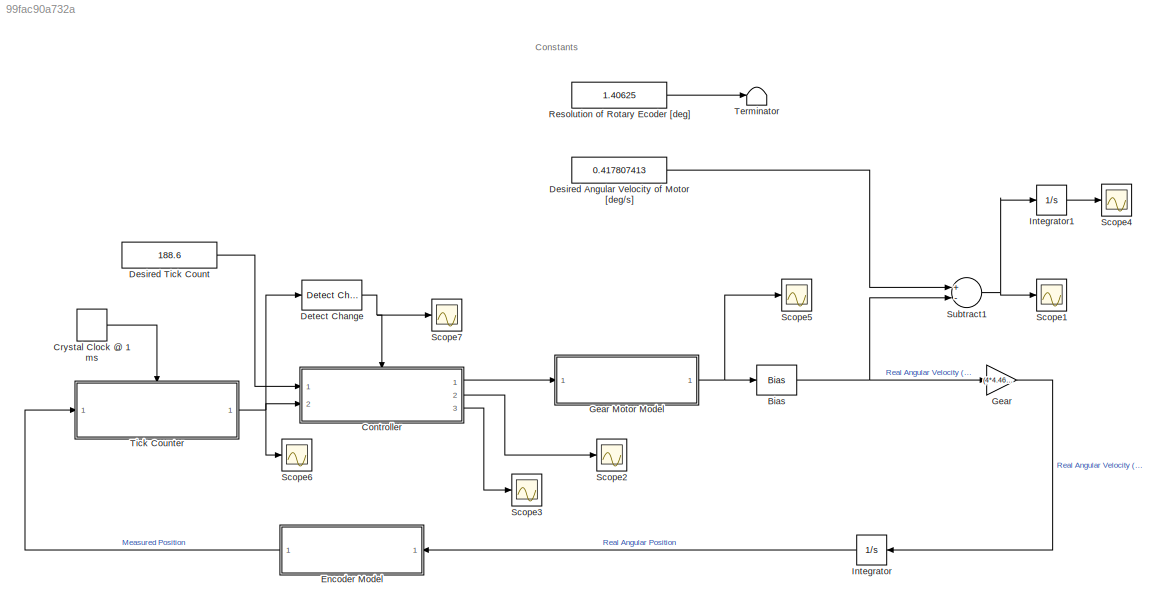
MODEL slx_99fac90a732a
KIND model
CONFIG AbsTol = auto
CONFIG FixedStep = 0.01
CONFIG MaxStep = auto
CONFIG MinStep = auto
CONFIG RelTol = 1e-3
CONFIG SampleTimeConstraint = Unconstrained
CONFIG Solver = ode45
CONFIG SolverMode = Auto
CONFIG SolverName = ode45
CONFIG StartTime = 0
CONFIG StopTime = 10
BLOCK [Bias] Bias
  SaturateOnIntegerOverflow = off
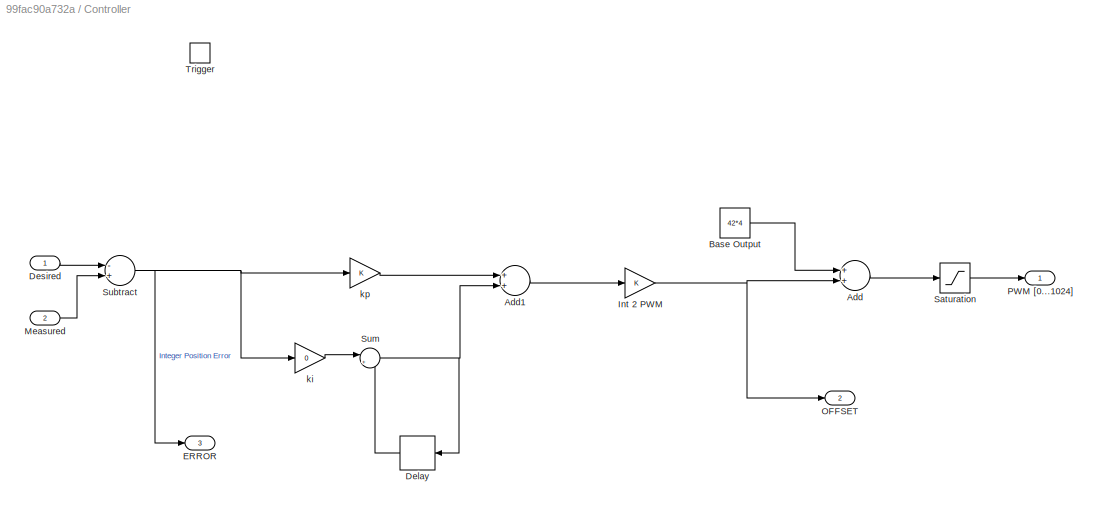
BLOCK [SubSystem] Controller
  Ports = [2, 3, 0, 1]
  RequestExecContextInheritance = off
  TreatAsAtomicUnit = on
BLOCK [Sum] Controller/Add
  InputSameDT = off
  OutDataTypeStr = Inherit: Inherit via internal rule
  Ports = [2, 1]
  SaturateOnIntegerOverflow = off
BLOCK [Sum] Controller/Add1
  InputSameDT = off
  OutDataTypeStr = Inherit: Inherit via internal rule
  Ports = [2, 1]
  SaturateOnIntegerOverflow = off
BLOCK [Constant] Controller/Base Output
  Value = 42*4
BLOCK [Delay] Controller/Delay
  DelayLength = 1
  InputPortMap = u0
  Ports = [1, 1]
BLOCK [Inport] Controller/Desired
  IconDisplay = Port number
BLOCK [Outport] Controller/ERROR
  IconDisplay = Port number
  InitialOutput = [0]
  Port = 3
BLOCK [Gain] Controller/Int 2 PWM
  OutDataTypeStr = Inherit: Inherit via internal rule
  ParamDataTypeStr = Inherit: Inherit via internal rule
  SaturateOnIntegerOverflow = off
BLOCK [Inport] Controller/Measured
  IconDisplay = Port number
  Port = 2
BLOCK [Outport] Controller/OFFSET
  IconDisplay = Port number
  InitialOutput = [0]
  Port = 2
BLOCK [Outport] Controller/PWM [0...1024]
  IconDisplay = Port number
  InitialOutput = [0]
BLOCK [Saturate] Controller/Saturation
  InputPortMap = u0
  LowerLimit = 0
  Ports = [1, 1]
  UpperLimit = 1024
BLOCK [Sum] Controller/Subtract
  InputSameDT = off
  Inputs = -+
  OutDataTypeStr = Inherit: Inherit via internal rule
  Ports = [2, 1]
  SaturateOnIntegerOverflow = off
BLOCK [Sum] Controller/Sum
  IconShape = round
  InputSameDT = off
  Inputs = |++
  OutDataTypeStr = Inherit: Inherit via internal rule
  Ports = [2, 1]
  SaturateOnIntegerOverflow = off
BLOCK [TriggerPort] Controller/Trigger
  Ports = []
  StatesWhenEnabling = held
BLOCK [Gain] Controller/ki
  Gain = 0
  OutDataTypeStr = Inherit: Inherit via internal rule
  ParamDataTypeStr = Inherit: Inherit via internal rule
  SaturateOnIntegerOverflow = off
BLOCK [Gain] Controller/kp
  OutDataTypeStr = Inherit: Inherit via internal rule
  ParamDataTypeStr = Inherit: Inherit via internal rule
  SaturateOnIntegerOverflow = off
BLOCK [DiscretePulseGenerator] Crystal Clock @ 1 ms
  Period = 0.001
  Ports = [0, 1]
  PulseType = Time based
  PulseWidth = 5
BLOCK [Constant] Desired Angular Velocity of Motor [deg//s]
  Value = 0.417807413
BLOCK [Constant] Desired Tick Count
  Value = 188.6
BLOCK [Reference] Detect Change  REF=simulink/Logic and Bit
Operations/Detect
Change
  InputProcessing = Inherited
  OutDataTypeStr = boolean
  Ports = [1, 1]
  SourceBlock = simulink/Logic and Bit\nOperations/Detect\nChange
  SourceType = Detect Change
  vinit = 0
BLOCK [ModelReference] Encoder Model
  CopyOfModelName = encoder.slx
  DefaultDataLogging = on
  ModelNameDialog = encoder.slx
  ModelReferenceVersion = 1.5
  Ports = [1, 1]
BLOCK [Gain] Gear
  Gain = (4*4.4615384615)
  OutDataTypeStr = Inherit: Inherit via internal rule
  ParamDataTypeStr = Inherit: Inherit via internal rule
  SaturateOnIntegerOverflow = off
BLOCK [ModelReference] Gear Motor Model
  CopyOfModelName = gear_motor.slx
  DefaultDataLogging = on
  ModelNameDialog = gear_motor.slx
  ModelReferenceVersion = 1.21
  Ports = [1, 1]
BLOCK [Integrator] Integrator
  Ports = [1, 1]
BLOCK [Integrator] Integrator1
  Ports = [1, 1]
BLOCK [Constant] Resolution of Rotary Ecoder [deg]
  Value = 1.40625
BLOCK [Scope] Scope1
  Floating = off
  LimitDataPoints = off
  NumInputPorts = 1
  Ports = [1]
  SaveName = ScopeData1
  TimeRange = 300
BLOCK [Scope] Scope2
  Floating = off
  LimitDataPoints = off
  NumInputPorts = 1
  Ports = [1]
  SaveName = ScopeData2
  TimeRange = 100
BLOCK [Scope] Scope3
  Floating = off
  LimitDataPoints = off
  NumInputPorts = 1
  Ports = [1]
  SaveName = ScopeData6
BLOCK [Scope] Scope4
  Floating = off
  LimitDataPoints = off
  NumInputPorts = 1
  Ports = [1]
  TimeRange = 300
  ZoomMode = xonly
BLOCK [Scope] Scope5
  Floating = off
  LimitDataPoints = off
  NumInputPorts = 1
  Ports = [1]
  SaveName = ScopeData3
  TimeRange = 300
BLOCK [Scope] Scope6
  Floating = off
  LimitDataPoints = off
  NumInputPorts = 1
  Ports = [1]
  SaveName = ScopeData4
  YMax = 170000
  YMin = 135000
BLOCK [Scope] Scope7
  Floating = off
  LimitDataPoints = off
  NumInputPorts = 1
  Ports = [1]
  SaveName = ScopeData5
  YMax = 170000
  YMin = 135000
BLOCK [Sum] Subtract1
  InputSameDT = off
  Inputs = +-
  OutDataTypeStr = Inherit: Inherit via internal rule
  Ports = [2, 1]
  SaturateOnIntegerOverflow = off
BLOCK [Terminator] Terminator
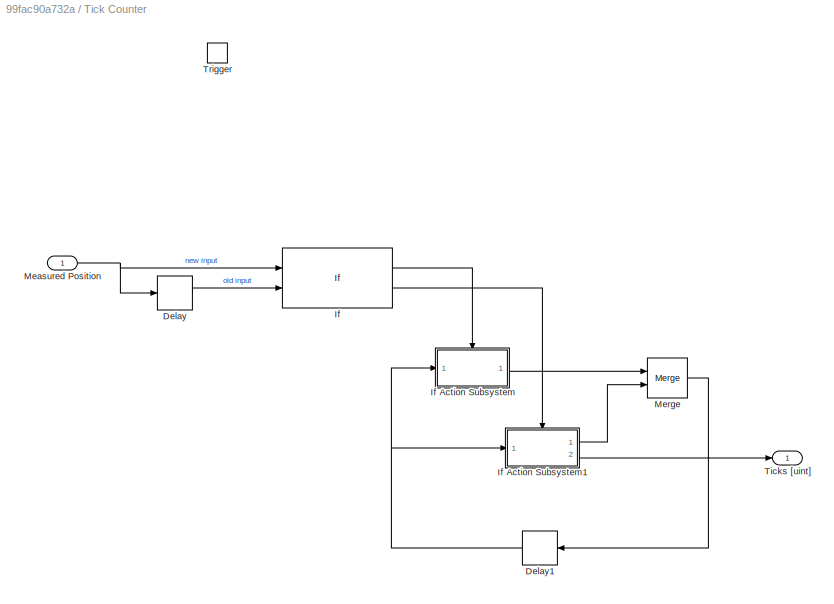
BLOCK [SubSystem] Tick Counter
  Ports = [1, 1, 0, 1]
  RequestExecContextInheritance = off
  TreatAsAtomicUnit = on
BLOCK [Delay] Tick Counter/Delay
  DelayLength = 1
  InitialCondition = 0
  InputPortMap = u0
  Ports = [1, 1]
BLOCK [Delay] Tick Counter/Delay1
  DelayLength = 1
  InitialCondition = 0
  InputPortMap = u0
  Ports = [1, 1]
BLOCK [If] Tick Counter/If
  IfExpression = u1 == u2
  NumInputs = 2
  Ports = [2, 2]
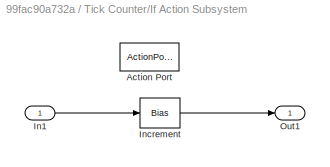
BLOCK [SubSystem] Tick Counter/If Action Subsystem
  Ports = [1, 1, 0, 0, 0, 0, 0, 1]
  RequestExecContextInheritance = off
  TreatAsAtomicUnit = on
BLOCK [ActionPort] Tick Counter/If Action Subsystem/Action Port
  ActionType = then
BLOCK [Inport] Tick Counter/If Action Subsystem/In1
  IconDisplay = Port number
BLOCK [Bias] Tick Counter/If Action Subsystem/Increment
  Bias = 1
  SaturateOnIntegerOverflow = off
BLOCK [Outport] Tick Counter/If Action Subsystem/Out1
  IconDisplay = Port number
  InitialOutput = 0
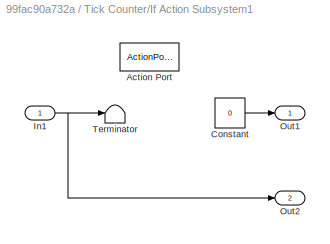
BLOCK [SubSystem] Tick Counter/If Action Subsystem1
  Ports = [1, 2, 0, 0, 0, 0, 0, 1]
  RequestExecContextInheritance = off
  TreatAsAtomicUnit = on
BLOCK [ActionPort] Tick Counter/If Action Subsystem1/Action Port
  ActionType = else
BLOCK [Constant] Tick Counter/If Action Subsystem1/Constant
  Value = 0
BLOCK [Inport] Tick Counter/If Action Subsystem1/In1
  IconDisplay = Port number
BLOCK [Outport] Tick Counter/If Action Subsystem1/Out1
  IconDisplay = Port number
  InitialOutput = 0
BLOCK [Outport] Tick Counter/If Action Subsystem1/Out2
  IconDisplay = Port number
  InitialOutput = 0
  Port = 2
BLOCK [Terminator] Tick Counter/If Action Subsystem1/Terminator
BLOCK [Inport] Tick Counter/Measured Position
  IconDisplay = Port number
BLOCK [Merge] Tick Counter/Merge
  Ports = [2, 1]
BLOCK [Outport] Tick Counter/Ticks [uint]
  IconDisplay = Port number
  InitialOutput = [0]
BLOCK [TriggerPort] Tick Counter/Trigger
  Ports = []
  StatesWhenEnabling = held
ANNOTATION (root): Constants
NET Bias:1 -> Gear:1, Subtract1:2
LINE Controller/Add1:1 -> Controller/Int 2 PWM:1
LINE Controller/Add:1 -> Controller/Saturation:1
LINE Controller/Base Output:1 -> Controller/Add:1
LINE Controller/Delay:1 -> Controller/Sum:2
LINE Controller/Desired:1 -> Controller/Subtract:1
NET Controller/Int 2 PWM:1 -> Controller/Add:2, Controller/OFFSET:1
LINE Controller/Measured:1 -> Controller/Subtract:2
LINE Controller/Saturation:1 -> Controller/PWM [0...1024]:1
NET Controller/Subtract:1 -> Controller/ERROR:1, Controller/ki:1, Controller/kp:1
NET Controller/Sum:1 -> Controller/Add1:2, Controller/Delay:1
LINE Controller/ki:1 -> Controller/Sum:1
LINE Controller/kp:1 -> Controller/Add1:1
LINE Controller:1 -> Gear Motor Model:1
LINE Controller:2 -> Scope2:1
LINE Controller:3 -> Scope3:1
LINE Crystal Clock @ 1 ms:1 -> Tick Counter:trigger
LINE Desired Angular Velocity of Motor [deg//s]:1 -> Subtract1:1
LINE Desired Tick Count:1 -> Controller:1
NET Detect Change:1 -> Controller:trigger, Scope7:1
LINE Encoder Model:1 -> Tick Counter:1
NET Gear Motor Model:1 -> Bias:1, Scope5:1
LINE Gear:1 -> Integrator:1
LINE Integrator1:1 -> Scope4:1
LINE Integrator:1 -> Encoder Model:1
LINE Resolution of Rotary Ecoder [deg]:1 -> Terminator:1
NET Subtract1:1 -> Integrator1:1, Scope1:1
NET Tick Counter/Delay1:1 -> Tick Counter/If Action Subsystem1:1, Tick Counter/If Action Subsystem:1
LINE Tick Counter/Delay:1 -> Tick Counter/If:2
LINE Tick Counter/If Action Subsystem/In1:1 -> Tick Counter/If Action Subsystem/Increment:1
LINE Tick Counter/If Action Subsystem/Increment:1 -> Tick Counter/If Action Subsystem/Out1:1
LINE Tick Counter/If Action Subsystem1/Constant:1 -> Tick Counter/If Action Subsystem1/Out1:1
NET Tick Counter/If Action Subsystem1/In1:1 -> Tick Counter/If Action Subsystem1/Out2:1, Tick Counter/If Action Subsystem1/Terminator:1
LINE Tick Counter/If Action Subsystem1:1 -> Tick Counter/Merge:2
LINE Tick Counter/If Action Subsystem1:2 -> Tick Counter/Ticks [uint]:1
LINE Tick Counter/If Action Subsystem:1 -> Tick Counter/Merge:1
LINE Tick Counter/If:1 -> Tick Counter/If Action Subsystem:ifaction
LINE Tick Counter/If:2 -> Tick Counter/If Action Subsystem1:ifaction
NET Tick Counter/Measured Position:1 -> Tick Counter/Delay:1, Tick Counter/If:1
LINE Tick Counter/Merge:1 -> Tick Counter/Delay1:1
NET Tick Counter:1 -> Controller:2, Detect Change:1, Scope6:1
note: NET lines group one-source signal fan-out (src -> all destinations, sorted); 1:1 wires keep LINE
